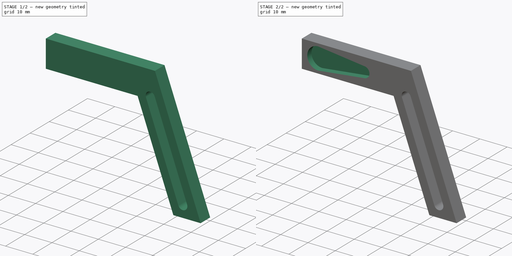
[diagram: build sequence overview — one tinted view per stage of 2, left to right]
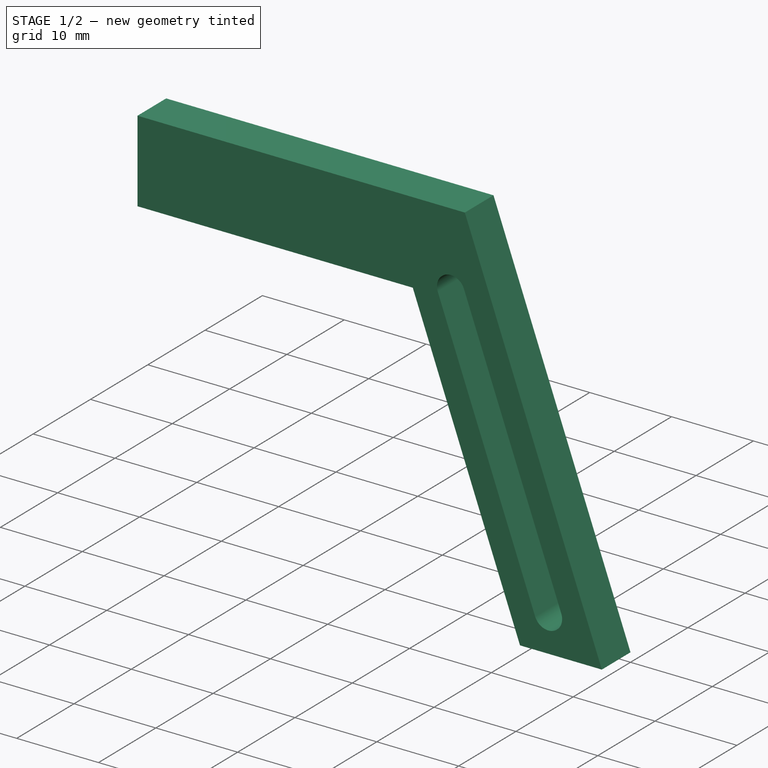
[diagram: stage 1 of 2 — iso view after this stage's code; geometry added in this stage tinted green]
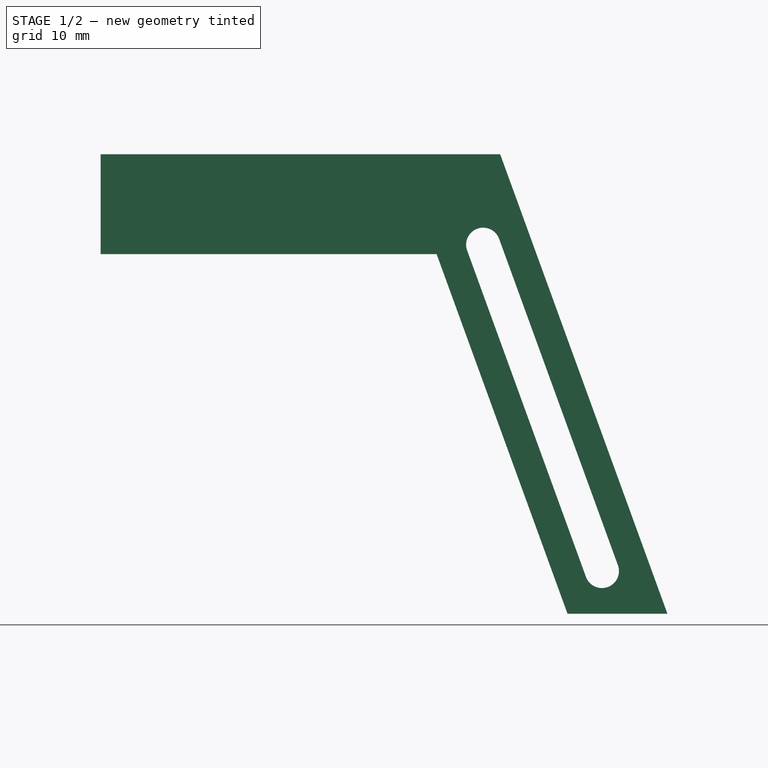
[diagram: stage 1 of 2 — front view after this stage's code; geometry added in this stage tinted green]
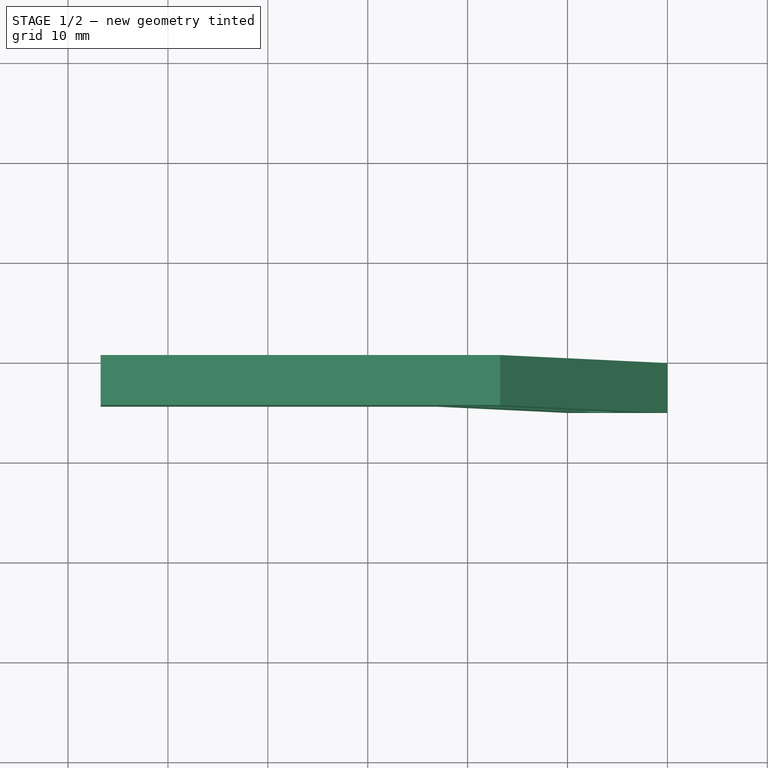
[diagram: stage 1 of 2 — top view after this stage's code; geometry added in this stage tinted green]
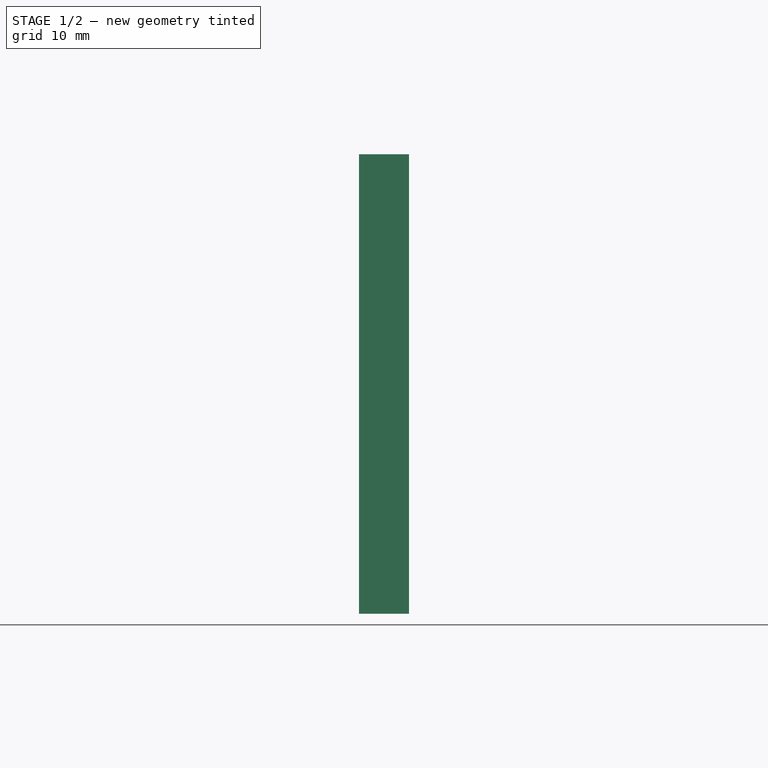
[diagram: stage 1 of 2 — right view after this stage's code; geometry added in this stage tinted green]
FCSTD DOCUMENT  (FreeCAD 0.21R33771 (Git))
Label: front-scoop-top
License: All rights reserved
LicenseURL: https://en.wikipedia.org/wiki/All_rights_reserved
objects: Sketcher::SketchObject×3, PartDesign::Pocket×2, PartDesign::Pad×1, PartDesign::Body×1
note: 10 computed .brp shape members not serialized (recipe doc carries the construction recipe); baked Part::Feature solids carry a one-line shape summary decoded from their .brp

FEATURE [Sketcher::SketchObject] Sketch
  FullyConstrained = true
  MapMode = 5
  Placement = pos=(0,0,0) rot=(1,0,0;1.5708rad)
  Support = -> [XZ_Plane]
  sketch-geometry (6):
    g0: LineSegment StartX=0 StartY=0 StartZ=0 EndX=-13.1029 EndY=36 EndZ=0
    g1: LineSegment StartX=-13.1029 StartY=36 StartZ=0 EndX=-46.7426 EndY=36 EndZ=0
    g2: LineSegment StartX=-46.7426 StartY=36 StartZ=0 EndX=-46.7426 EndY=46 EndZ=0
    g3: LineSegment StartX=-46.7426 StartY=46 StartZ=0 EndX=-6.74263 EndY=46 EndZ=0
    g4: LineSegment StartX=-6.74263 StartY=46 StartZ=0 EndX=10 EndY=0 EndZ=0
    g5: LineSegment StartX=10 StartY=0 StartZ=0 EndX=0 EndY=0 EndZ=0
  constraints (17):
    c: Coincident(g-1,g0)
    c: Coincident(g0,g1)
    c: Horizontal(g1)
    c: Coincident(g1,g2)
    c: Vertical(g2)
    c: Coincident(g2,g3)
    c: Horizontal(g3)
    c: Coincident(g3,g4)
    c: PointOnObject(g4,g-1)
    c: Coincident(g4,g5)
    c: Coincident(g5,g0)
    c: DistanceX(g5,g5) = 10
    c: Angle(g5,g0) = 1.91986
    c: Angle(g4,g-1) = 1.22173
    c: DistanceY(g0,g0) = 36
    c: DistanceY(g2,g2) = 10
    c: DistanceX(g3,g3) = 40
FEATURE [PartDesign::Pad] Pad
  Direction = (0,-1,-2e-16)
  Length = 5
  Length2 = 10
  Placement = pos=(0,0,0) rot=(1,0,0;1.5708rad)
  Profile = -> Sketch
  ReferenceAxis = -> Sketch [N_Axis]
  Type = 0
FEATURE [Sketcher::SketchObject] Sketch001
  ExternalGeometry = -> [Pad]
  FullyConstrained = false
  MapMode = 5
  Placement = pos=(0,-5,-1.1e-15) rot=(1,0,0;1.5708rad)
  Support = -> [Pad]
  sketch-geometry (5):
    g0: ArcOfCircle CenterX=-8.44749 CenterY=36.9467 CenterZ=0 NormalX=0 NormalY=0 NormalZ=1 AngleXU=0 Radius=1.70268 StartAngle=0.349066 EndAngle=3.49066
    g1: ArcOfCircle CenterX=3.44395 CenterY=4.27522 CenterZ=0 NormalX=0 NormalY=0 NormalZ=1 AngleXU=0 Radius=1.70268 StartAngle=3.49066 EndAngle=6.63225
    g2: LineSegment StartX=-10.0475 StartY=36.3643 StartZ=0 EndX=1.84395 EndY=3.69286 EndZ=0
    g3: LineSegment StartX=5.04395 StartY=4.85757 StartZ=0 EndX=-6.84749 EndY=37.529 EndZ=0
    g4: LineSegment StartX=5 StartY=0 StartZ=0 EndX=-11.7426 EndY=46 EndZ=0
  constraints (11):
    c: Tangent(g0,g2) = -1.5708
    c: Tangent(g2,g1) = -1.5708
    c: Tangent(g1,g3) = -1.5708
    c: Tangent(g3,g0) = -1.5708
    c: Equal(g0,g1)
    c: DistanceX(g0,g0) = 1.6
    c: PointOnObject(g4,g-3)
    c: Equal(g-4,g4)
    c: PointOnObject(g1,g4)
    c: PointOnObject(g0,g4)
    c: Symmetric(g-1,g-4,g4)
FEATURE [PartDesign::Pocket] Pocket
  BaseFeature = -> Pad
  Direction = (0,1,2e-16)
  Length = 5
  Length2 = 5
  Placement = pos=(0,0,0) rot=(1,0,0;1.5708rad)
  Profile = -> Sketch001
  ReferenceAxis = -> Sketch001 [N_Axis]
  Type = 1
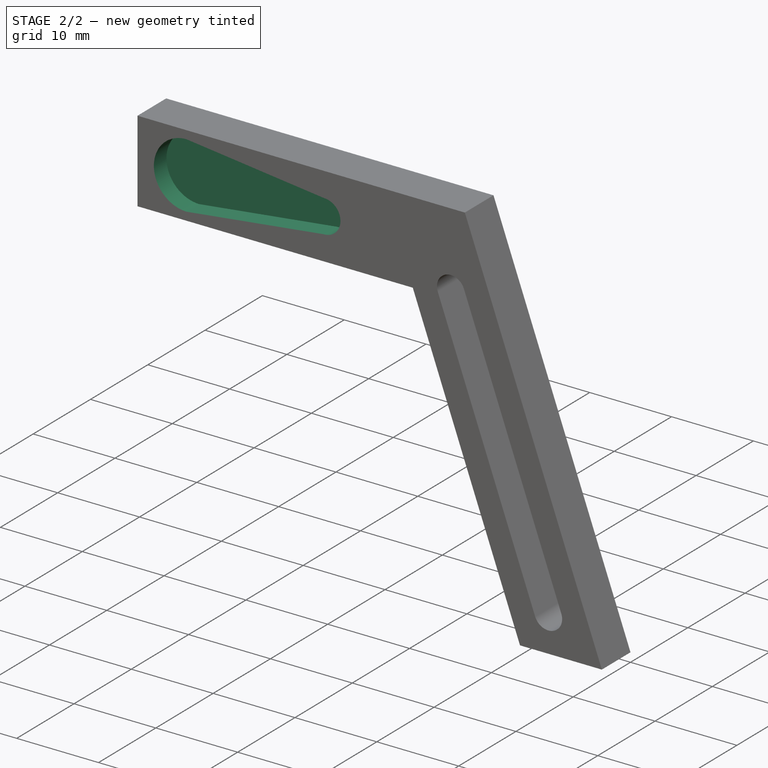
[diagram: stage 2 of 2 — iso view after this stage's code; geometry added in this stage tinted green]
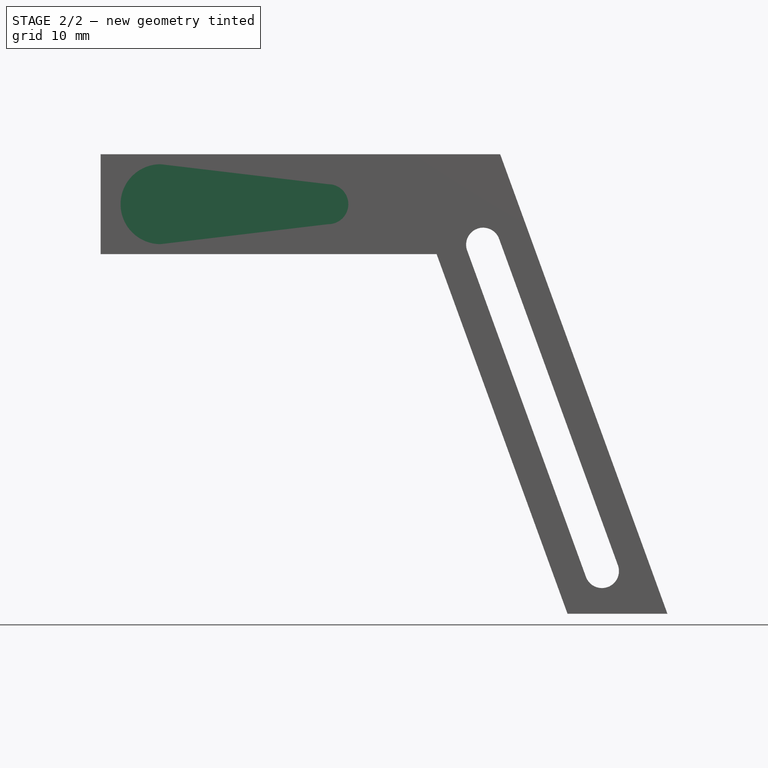
[diagram: stage 2 of 2 — front view after this stage's code; geometry added in this stage tinted green]
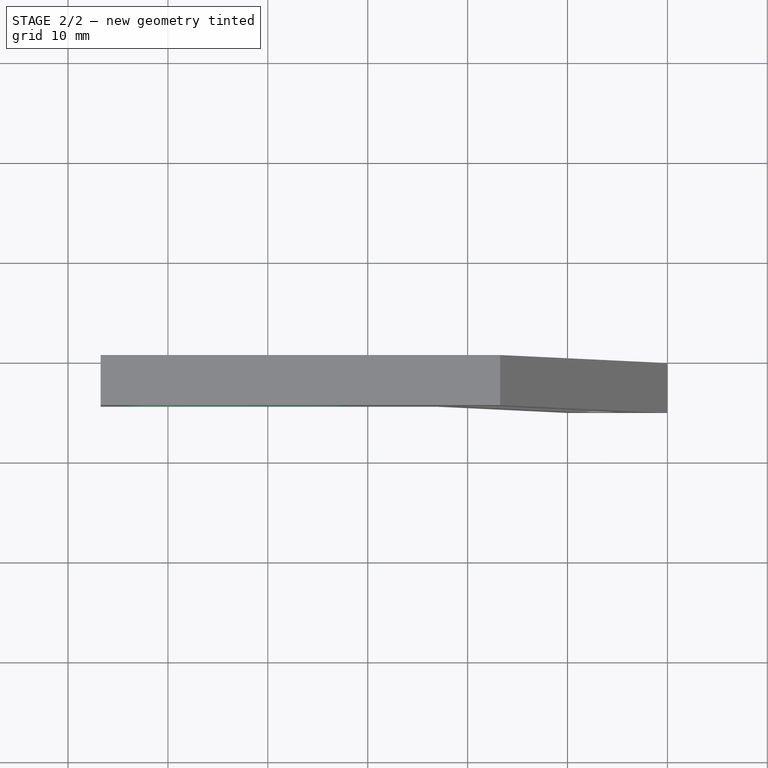
[diagram: stage 2 of 2 — top view after this stage's code; geometry added in this stage tinted green]
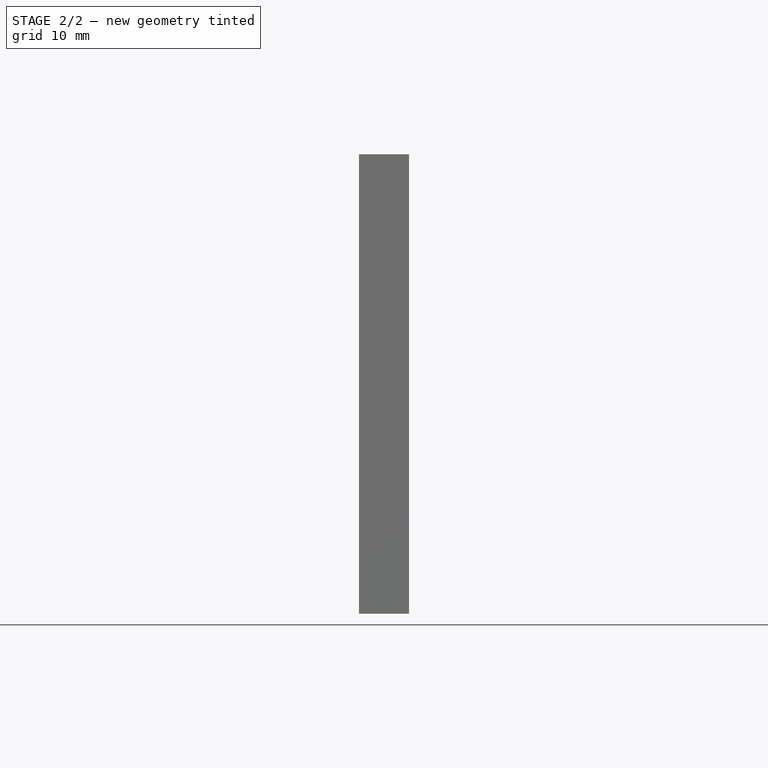
[diagram: stage 2 of 2 — right view after this stage's code; geometry added in this stage tinted green]
FEATURE [Sketcher::SketchObject] Sketch002
  ExternalGeometry = -> [Pocket]
  FullyConstrained = false
  MapMode = 5
  Placement = pos=(0,-5,-1.1e-15) rot=(1,0,0;1.5708rad)
  Support = -> [Pocket]
  sketch-geometry (6):
    g0: LineSegment StartX=-40.7426 StartY=45 StartZ=0 EndX=-23.9426 EndY=43 EndZ=0
    g1: LineSegment StartX=-40.7426 StartY=37 StartZ=0 EndX=-23.9426 EndY=39 EndZ=0
    g2: ArcOfCircle CenterX=-40.7426 CenterY=41 CenterZ=0 NormalX=0 NormalY=0 NormalZ=1 AngleXU=0 Radius=4 StartAngle=1.5708 EndAngle=4.71239
    g3: ArcOfCircle CenterX=-23.9426 CenterY=41 CenterZ=0 NormalX=0 NormalY=0 NormalZ=1 AngleXU=0 Radius=2 StartAngle=4.71239 EndAngle=7.85398
    g4: LineSegment StartX=-40.7426 StartY=46 StartZ=0 EndX=-40.7426 EndY=35.76 EndZ=0
    g5: LineSegment StartX=-23.9426 StartY=46 StartZ=0 EndX=-23.9426 EndY=36.0467 EndZ=0
  constraints (20):
    c: Coincident(g2,g0)
    c: Coincident(g2,g1)
    c: Coincident(g3,g1)
    c: Coincident(g3,g0)
    c: Radius(g2) = 4
    c: Radius(g3) = 2
    c: DistanceX(g-3,g2) = 6
    c: DistanceY(g-3,g2) = 5
    c: DistanceX(g2,g3) = 16.8
    c: DistanceY(g-3,g3) = 5
    c: PointOnObject(g4,g-4)
    c: Vertical(g4)
    c: PointOnObject(g2,g4)
    c: PointOnObject(g0,g4)
    c: PointOnObject(g1,g4)
    c: PointOnObject(g5,g-4)
    c: Vertical(g5)
    c: PointOnObject(g3,g5)
    c: PointOnObject(g0,g5)
    c: PointOnObject(g1,g5)
FEATURE [PartDesign::Pocket] Pocket001
  BaseFeature = -> Pocket
  Direction = (0,1,2e-16)
  Length = 2.2
  Length2 = 5
  Placement = pos=(0,0,0) rot=(1,0,0;1.5708rad)
  Profile = -> Sketch002
  ReferenceAxis = -> Sketch002 [N_Axis]
  Type = 0
FEATURE [PartDesign::Body] Body
  Group = -> [Sketch,Pad,Sketch001,Pocket,Sketch002,Pocket001]
  Origin = -> Origin
  Tip = -> Pocket001
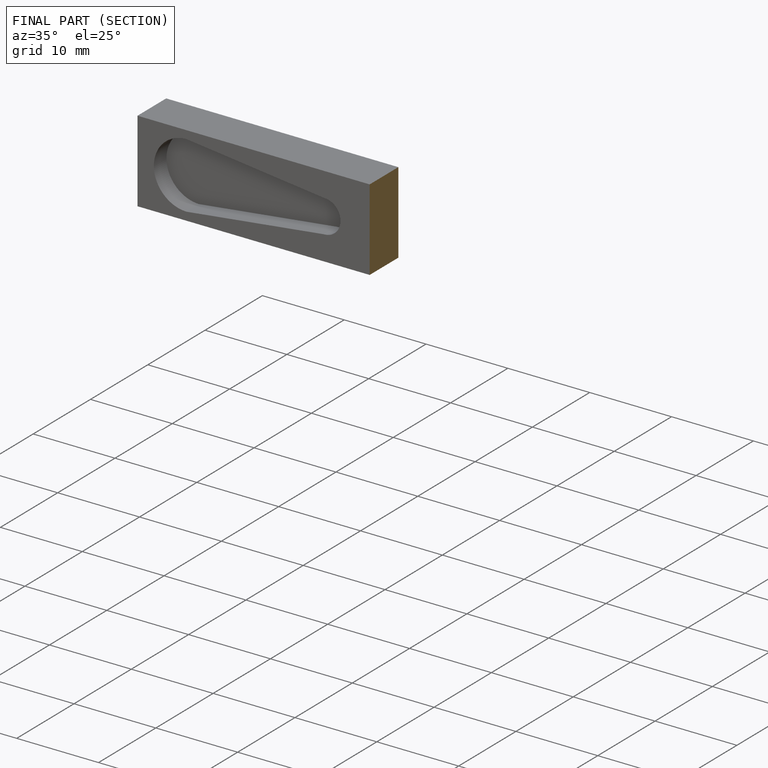
[diagram: finished part — half-section view (interior)]
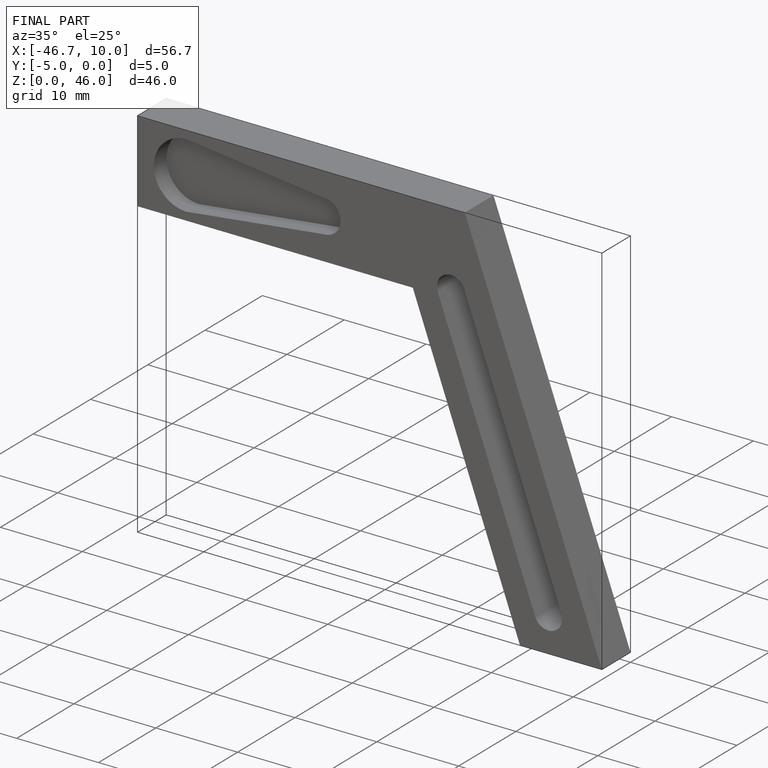
[diagram: finished part — iso view with bounding-box wireframe]
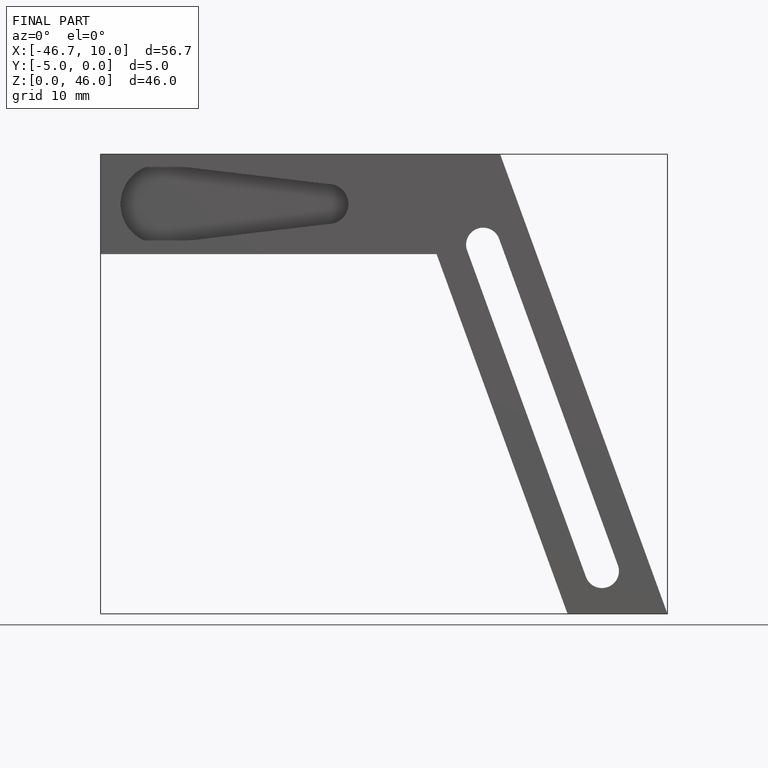
[diagram: finished part — front view with bounding-box wireframe]
